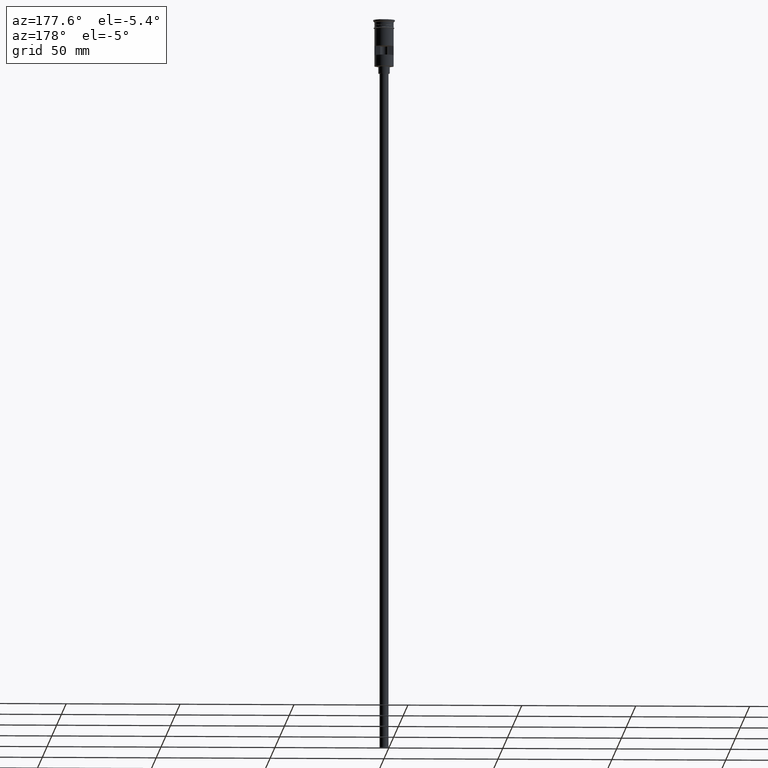
[diagram: clean part render]
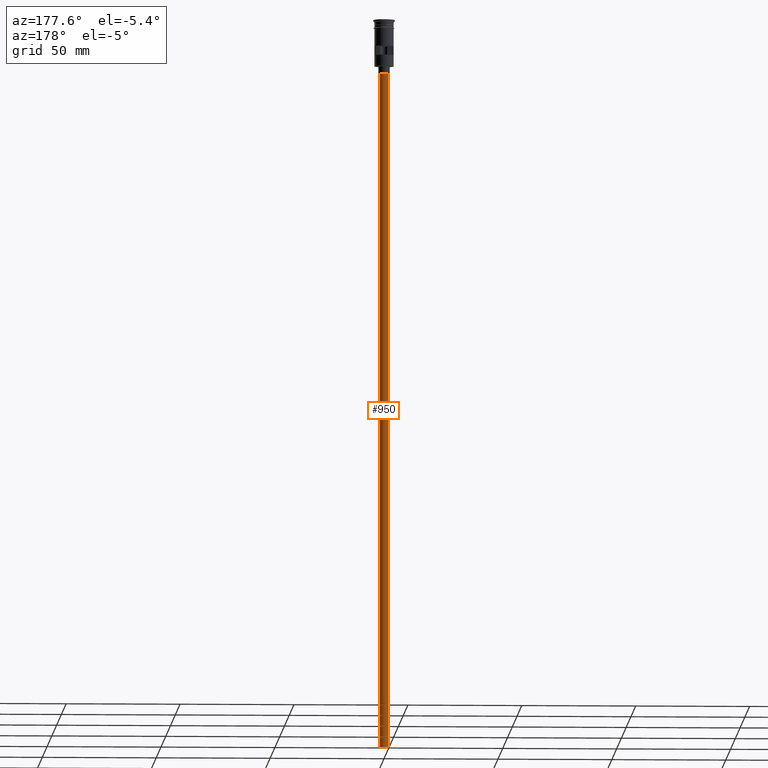
[diagram: same view with one face highlighted and labeled with its STEP entity id]
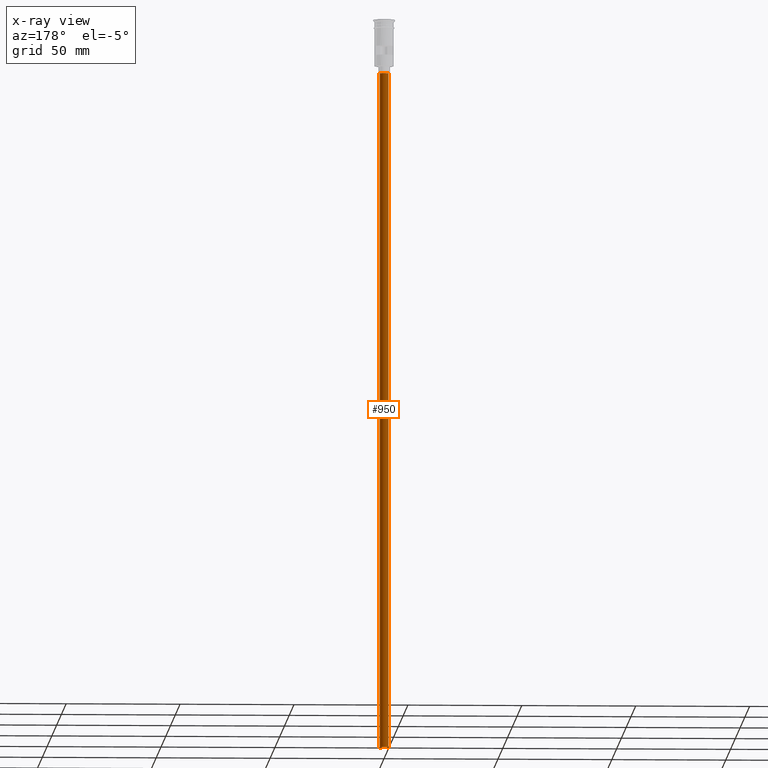
[diagram: x-ray of the same camera — body ghosted, the highlighted face saturated]
A machine part, auxiliary view. The second image highlights one B-rep face of the part: STEP entity #950.
The next image is the same camera in x-ray: the body ghosted, the highlighted face saturated — about 0% of this face is hidden behind the body in this view.
In plain terms, the highlighted cylindrical surface (edge-blend (fillet) strip) has radius 2 mm, axis along (-0, -0, 1).
Its self-contained STEP definition (entity closure, byte-faithful):
#32 = ORIENTED_EDGE ( 'NONE', *, *, #1154, .T. ) ;
#90 = VECTOR ( 'NONE', #611, 1000.000000000000000 ) ;
#117 = DIRECTION ( 'NONE',  ( -0.000000000000000000, -0.000000000000000000, 1.000000000000000000 ) ) ;
#123 = CIRCLE ( 'NONE', #1512, 2.000000000000000000 ) ;
#129 = EDGE_CURVE ( 'NONE', #542, #1380, #498, .T. ) ;
#131 = CARTESIAN_POINT ( 'NONE',  ( 0.000000000000000000, 0.000000000000000000, -320.5000000000000000 ) ) ;
#136 = VERTEX_POINT ( 'NONE', #1211 ) ;
#148 = CARTESIAN_POINT ( 'NONE',  ( -2.000000000000000000, 2.449293598294706414E-16, -320.5000000000000000 ) ) ;
#161 = DIRECTION ( 'NONE',  ( 0.000000000000000000, 0.000000000000000000, -1.000000000000000000 ) ) ;
#274 = EDGE_CURVE ( 'NONE', #723, #136, #961, .T. ) ;
#301 = DIRECTION ( 'NONE',  ( -1.000000000000000000, 0.000000000000000000, 0.000000000000000000 ) ) ;
#314 = AXIS2_PLACEMENT_3D ( 'NONE', #741, #730, #397 ) ;
#397 = DIRECTION ( 'NONE',  ( -1.000000000000000000, 0.000000000000000000, 0.000000000000000000 ) ) ;
#407 = CARTESIAN_POINT ( 'NONE',  ( 0.000000000000000000, 0.000000000000000000, -23.49999999999999645 ) ) ;
#463 = ORIENTED_EDGE ( 'NONE', *, *, #274, .T. ) ;
#472 = DIRECTION ( 'NONE',  ( -0.000000000000000000, -0.000000000000000000, 1.000000000000000000 ) ) ;
#498 = LINE ( 'NONE', #1482, #604 ) ;
#542 = VERTEX_POINT ( 'NONE', #692 ) ;
#562 = ORIENTED_EDGE ( 'NONE', *, *, #704, .F. ) ;
#572 = ORIENTED_EDGE ( 'NONE', *, *, #129, .F. ) ;
#593 = FACE_OUTER_BOUND ( 'NONE', #1293, .T. ) ;
#602 = DIRECTION ( 'NONE',  ( 1.000000000000000000, 0.000000000000000000, 0.000000000000000000 ) ) ;
#604 = VECTOR ( 'NONE', #472, 1000.000000000000000 ) ;
#611 = DIRECTION ( 'NONE',  ( -0.000000000000000000, -0.000000000000000000, 1.000000000000000000 ) ) ;
#692 = CARTESIAN_POINT ( 'NONE',  ( 2.000000000000000000, 0.000000000000000000, -320.5000000000000000 ) ) ;
#704 = EDGE_CURVE ( 'NONE', #723, #542, #860, .T. ) ;
#723 = VERTEX_POINT ( 'NONE', #148 ) ;
#730 = DIRECTION ( 'NONE',  ( 0.000000000000000000, 0.000000000000000000, -1.000000000000000000 ) ) ;
#741 = CARTESIAN_POINT ( 'NONE',  ( 0.000000000000000000, 0.000000000000000000, -320.5000000000000000 ) ) ;
#860 = CIRCLE ( 'NONE', #314, 2.000000000000000000 ) ;
#950 = ADVANCED_FACE ( 'NONE', ( #593 ), #1577, .T. ) ;
#961 = LINE ( 'NONE', #1343, #90 ) ;
#1115 = CARTESIAN_POINT ( 'NONE',  ( 2.000000000000000000, 0.000000000000000000, -23.49999999999999645 ) ) ;
#1154 = EDGE_CURVE ( 'NONE', #136, #1380, #123, .T. ) ;
#1211 = CARTESIAN_POINT ( 'NONE',  ( -2.000000000000000000, 2.449293598294706414E-16, -23.49999999999999645 ) ) ;
#1293 = EDGE_LOOP ( 'NONE', ( #562, #463, #32, #572 ) ) ;
#1343 = CARTESIAN_POINT ( 'NONE',  ( -2.000000000000000000, 2.449293598294706414E-16, -320.5000000000000000 ) ) ;
#1380 = VERTEX_POINT ( 'NONE', #1115 ) ;
#1398 = AXIS2_PLACEMENT_3D ( 'NONE', #131, #117, #602 ) ;
#1482 = CARTESIAN_POINT ( 'NONE',  ( 2.000000000000000000, 0.000000000000000000, -320.5000000000000000 ) ) ;
#1512 = AXIS2_PLACEMENT_3D ( 'NONE', #407, #161, #301 ) ;
#1577 = CYLINDRICAL_SURFACE ( 'NONE', #1398, 2.000000000000000000 ) ;